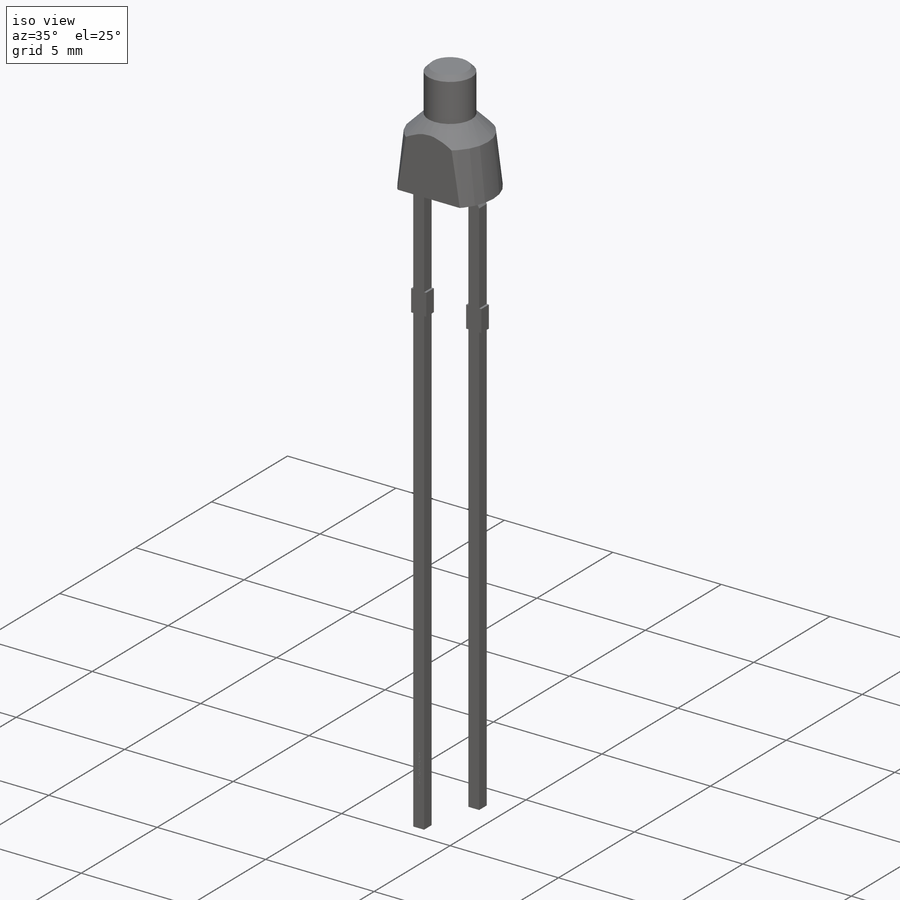
[diagram: iso view]
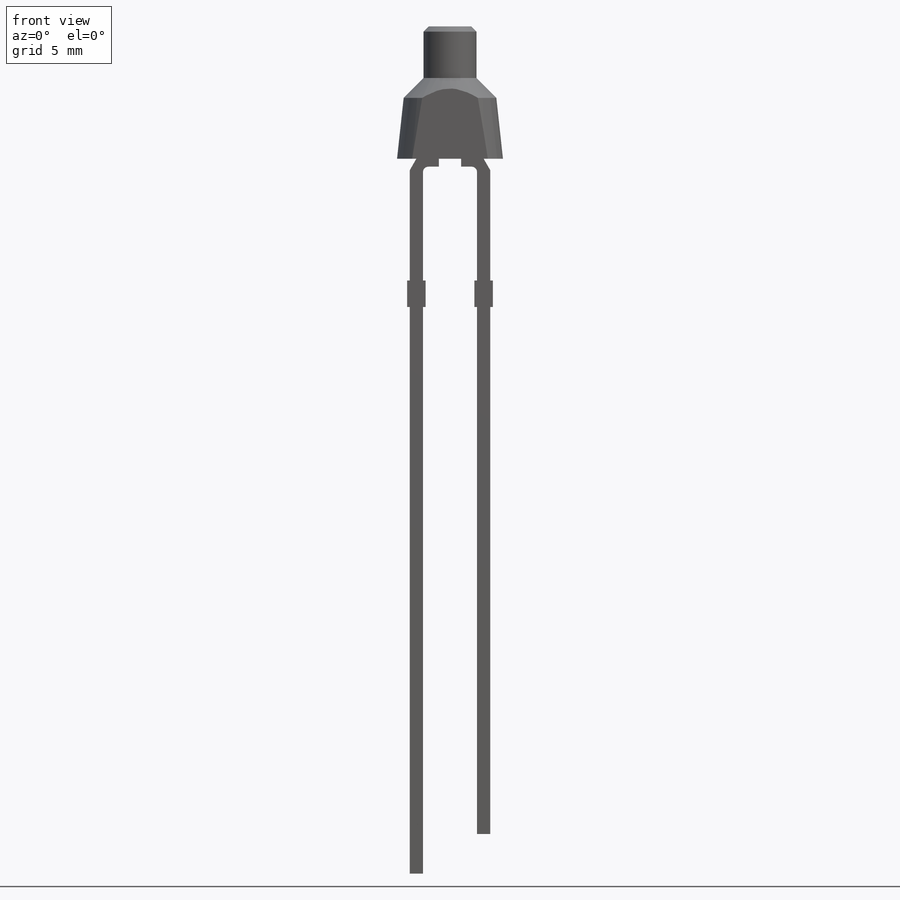
[diagram: front view]
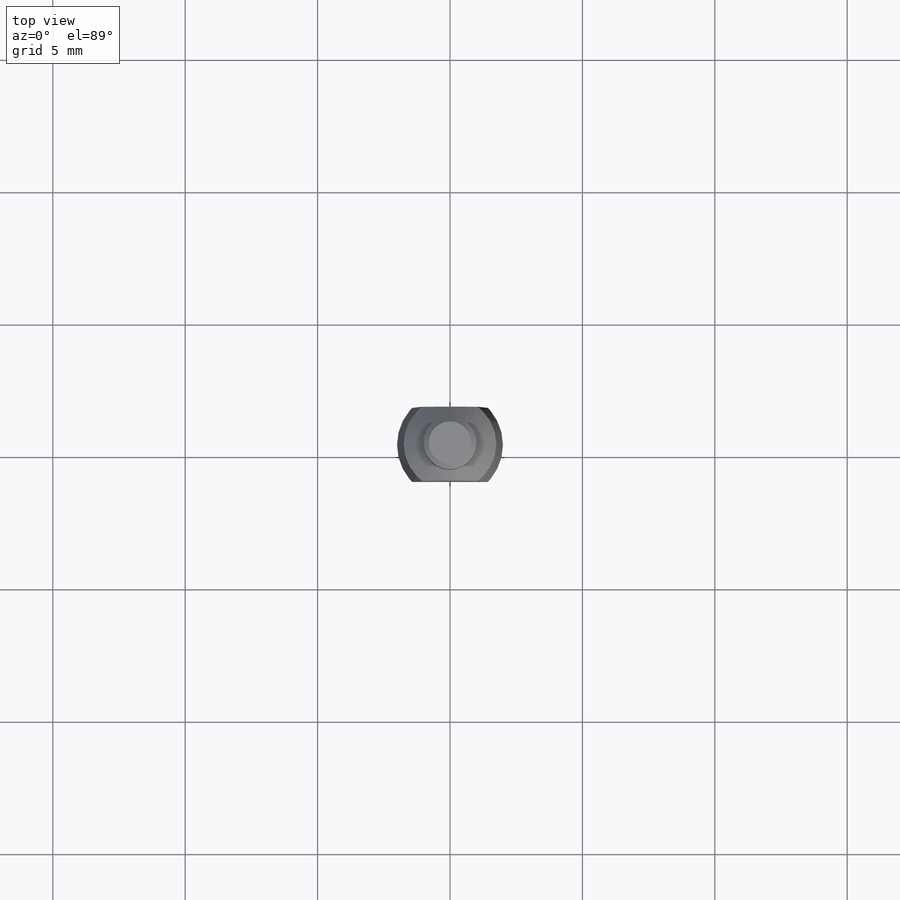
[diagram: top view]
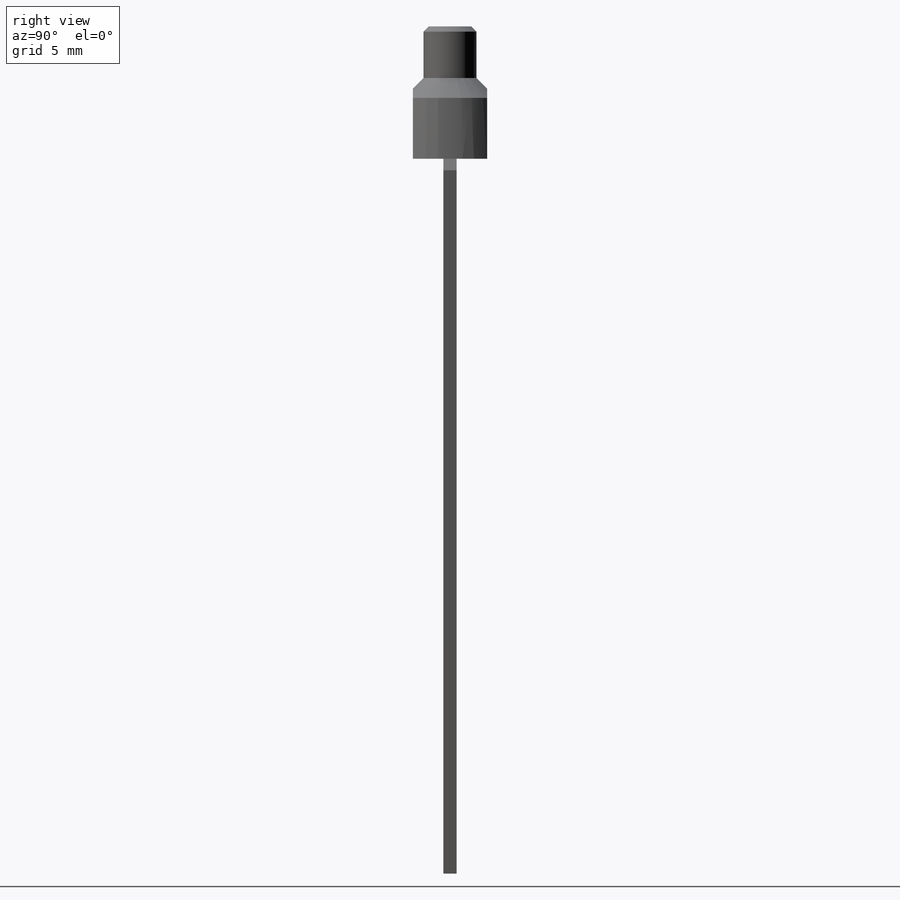
[diagram: right view]
SOLIDWORKS PART (.sldprt)
format: sldprt  version: not decoded by parser v0  size: 678,400 bytes
history: native  units: mm
features: sketch x4, cut_extrude x2, material x1, revolve x1, extrude x1, fillet x1, chamfer x1 (+11 scaffold rows collapsed)
feature tree (22):
  scaffold x11  (default folders/planes/origin — collapsed)
  material  "Material <not specified>"
  sketch  "Sketch1"  dims[c1.D14=2.9mm c1.D1=2.5mm c1.D2=0.5mm c1.D3=0.6mm c1.D4=0.3mm c1.D5=0.7mm c1.D6=1.0mm c1.D7=5.0mm c1.D8=2.54mm c1.D9=1.5mm c1.D10=27.0mm c1.D11=0.85mm c2.D11=60.0deg c2.D12=0.85mm c2.D8=2.54mm c2.D9=27.0mm c2.D10=0.5mm c3.D9=1.5mm c3.D10=27.0mm c3.D12=5.0mm c3.D13=1.0mm c3.D15=4.6mm c4.D12=1.0mm c4.D13=5.0mm c4.D14=0.75mm c4.D15=1.95mm c4.D16=1.75mm c4.D17=~2.509863mm c5.D17=98.0deg c6.D17=2.0mm c6.D7=9.6mm]
  revolve  "Revolve1"  Angle=360deg
  extrude  "Extrude1"  [1 undecoded]
  sketch  "Sketch1<4>"  dims[D1=0.5mm]
  fillet  "Fillet1"  Radius=0.2mm
  chamfer  "Chamfer1"  Distance=0.2mm
  sketch  "Sketch3"  dims[D1=2.8mm]
  cut_extrude  "Cut-Extrude1"  [1 undecoded]
  sketch  "Sketch4"  dims[D1=5.0mm]
  cut_extrude  "Cut-Extrude2"  Depth=0.01mm
decode coverage: 8 of 10 modeling features carry decoded parameters
note: ~ marks probable driven/reference dimensions
note: 2 parameter values undecoded
note: suppression state not decoded; provenance and decode notes live in map.json
